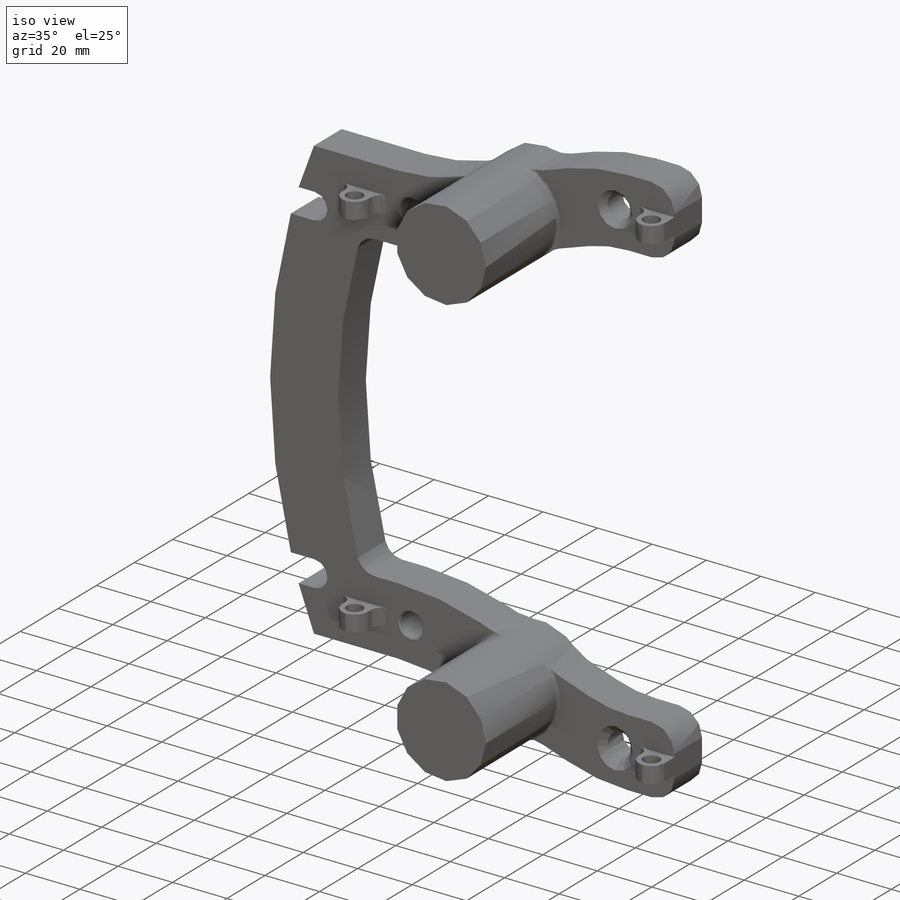
[diagram: iso view]
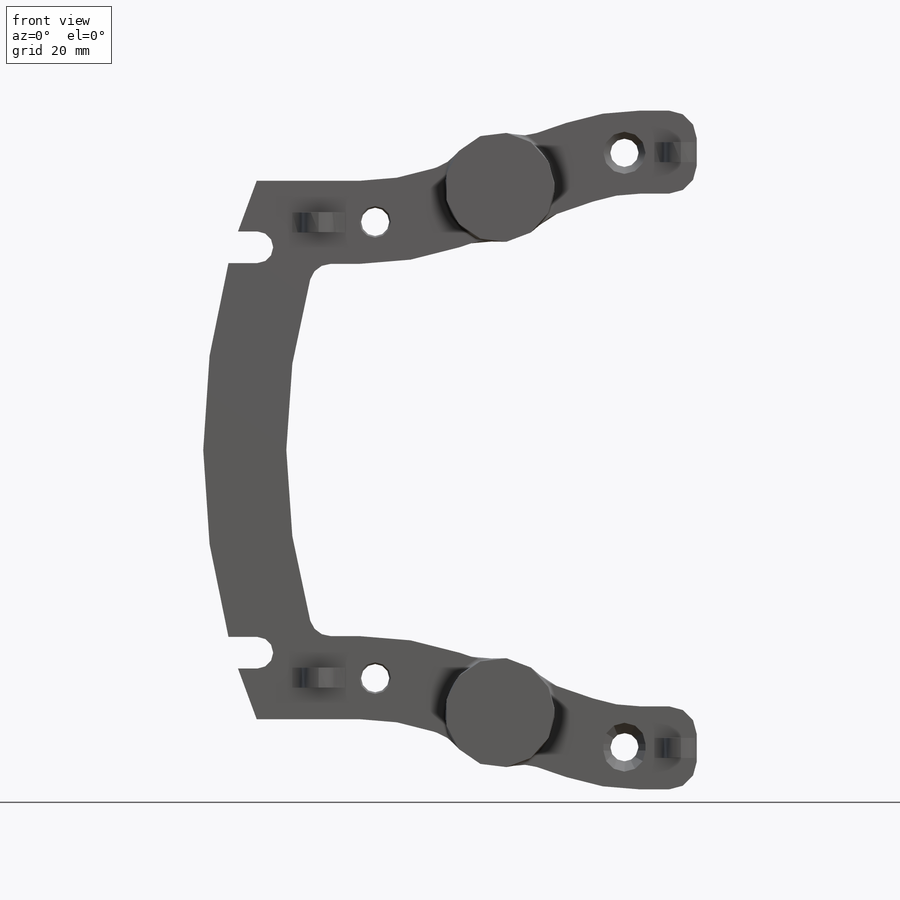
[diagram: front view]
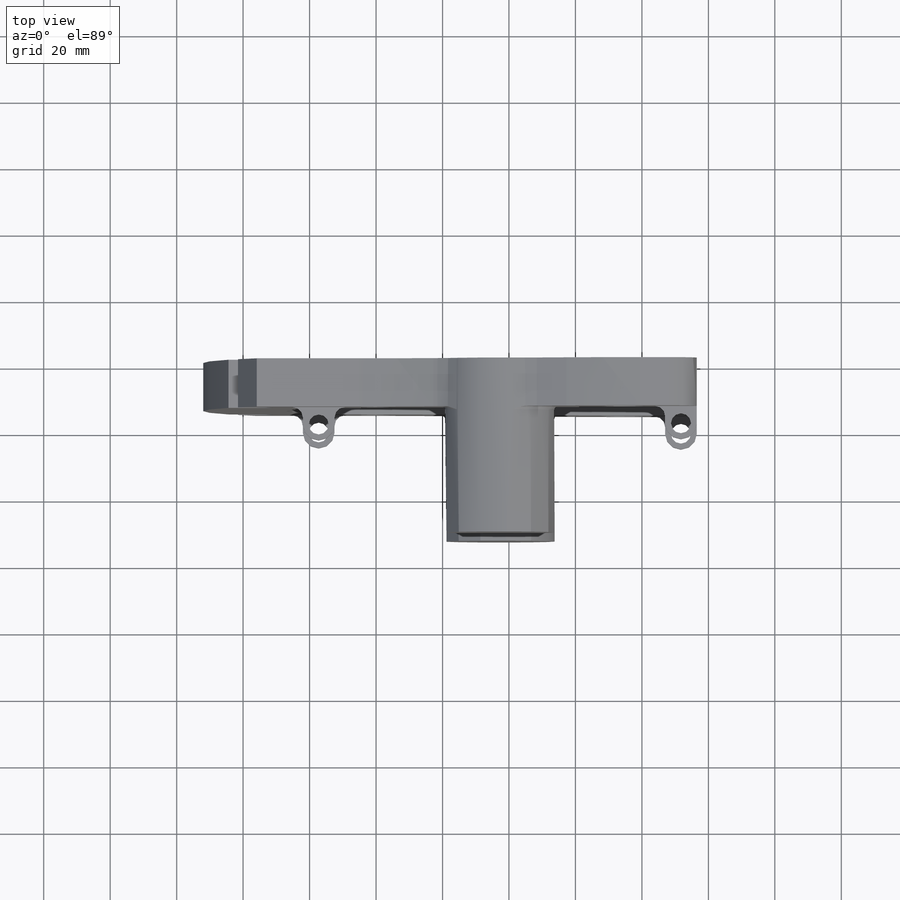
[diagram: top view]
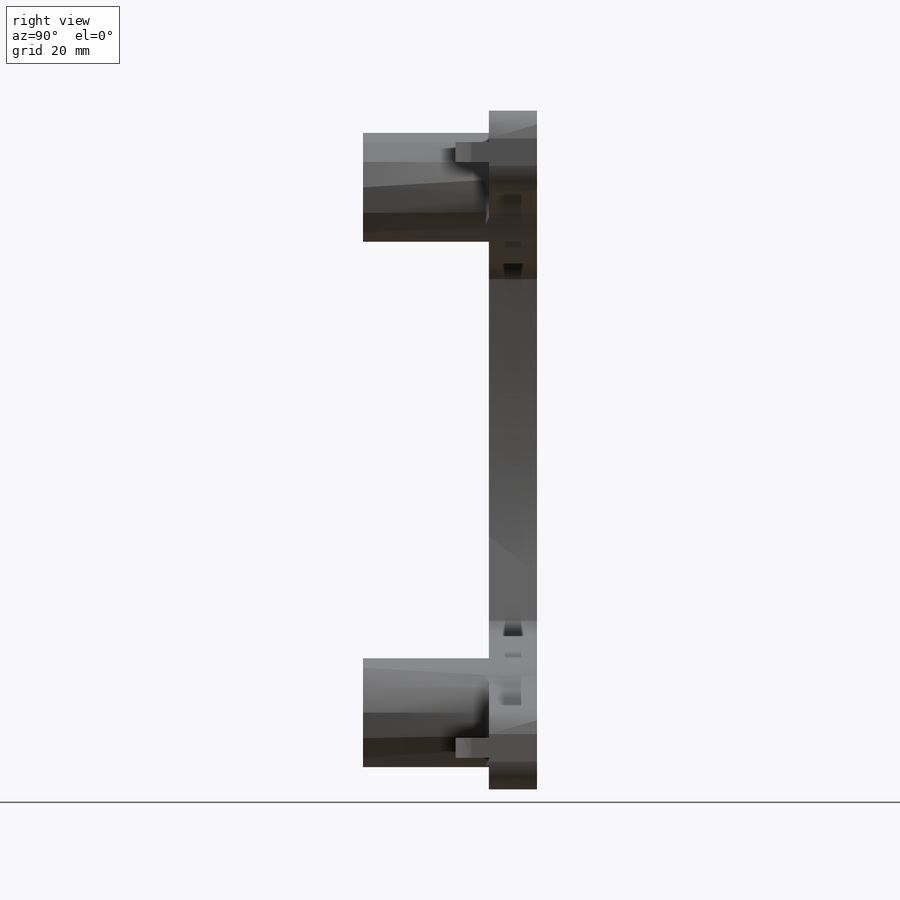
[diagram: right view]
SOLIDWORKS PART (.sldprt)
format: sldprt  version: not decoded by parser v0  size: 1,541,120 bytes
history: native  units: mm
features: sketch x21, extrude x11, fillet x9, mirror x6, cut_extrude x5, plane x4, chamfer x2, cut_revolve x2, material x1, shell x1, boolean_combine x1, hole x1 (+11 scaffold rows collapsed)
feature tree (75):
  scaffold x11  (default folders/planes/origin — collapsed)
  material  "6061 Alloy"
  sketch  "Sketch1"  dims[c1.D1=424.0mm c1.D2=374.0mm c1.D8=12.0mm c1.D9=37.0mm c1.D3=81.0mm c1.D4=25.0mm c1.D5=63.5mm c1.D6=~144.918572mm c1.D7=145.0mm c2.D6=145.0mm c2.D7=108.0mm c3.D6=~21.131403mm c3.D7=25.0mm c3.D8=17.0mm c3.D9=118.525mm c3.D10=40.0mm c3.D11=25.0mm]
  extrude  "Boss-Extrude1"  Depth=14.5mm
  plane  "Plane1"  Offset=89.631403mm
  plane  "Plane2"  Offset=68.5mm
  fillet  "Fillet5"  Radius=8.35mm
  sketch  "Sketch12"  dims[c1.D2=33.0mm c1.D1=122.7625mm c2.D2=25.0mm c2.D3=75.0mm]
  extrude  "bulge and set post hole position"  [1 undecoded]
  sketch  "Sketch24"
  extrude  "Boss-Extrude7"  Depth=37.8604mm
  mirror  "Mirror4"
  fillet  "Fillet4"  Radius=12.7mm
  sketch  "Sketch21"  dims[D1=410.0mm D3=9.525mm D2=61.0mm]
  cut_extrude  "Cut-Extrude5"  [1 undecoded]
  mirror  "Mirror7"
  shell  "Shell1"  Thickness=2mm
  sketch  "Sketch2"  dims[D3=6.0mm D1=9.525mm D2=10.0mm]
  extrude  "Boss-Extrude2"  Depth=6mm
  sketch  "Sketch3"  dims[D1=54.5mm]
  extrude  "Boss-Extrude3"  Depth=6mm
  mirror  "Mirror1"
  boolean_combine  "Combine1"
  fillet  "Fillet1"  Radius=3.175mm
  fillet  "Fillet2"  Radius=4.7625mm
  sketch  "hole and nubben"  dims[D1=205.0mm D2=61.0mm D3=41.0mm]
  hole  "CBORE for #10 Socket Head Cap Screw1"  Diameter=5.6134mm Depth=2.001mm
  sketch  "3DSketch2"
  sketch  "Sketch7"  dims[hole-wizard template sketch: 42 standard entries collapsed; hole parameters kept: c12.Thru Hole Depth=2.001mm c12.C'Bore Dia.=9.525mm c12.C'Bore Depth=4.826mm]
  sketch  "Sketch10"
  cut_extrude  "Cut-Extrude1"  Depth=3mm
  sketch  "Sketch11"
  cut_extrude  "Cut-Extrude2"  [1 undecoded]
  chamfer  "Chamfer1"  Distance=0.5mm Angle=45deg
  mirror  "Mirror2"
  fillet  "Fillet3"  Radius=6.35mm
  sketch  "Sketch13"  dims[D1=14.7mm]
  extrude  "post"  Depth=10mm
  sketch  "Sketch14"  dims[D1=8.5mm]
  cut_extrude  "Cut-Extrude3"  [1 undecoded]
  sketch  "Sketch17"  dims[D1=5.0mm D2=5.0mm]
  extrude  "Boss-Extrude6"  [1 undecoded]
  mirror  "Mirror5"
  fillet  "Fillet6"  Radius=1.5875mm
  plane  "Plane3"
  sketch  "Sketch15"  dims[c1.D1=~8.108842mm c2.D1=45.0deg c2.D2=6.35mm c2.D3=3.175mm]
  cut_revolve  "Cut-Revolve1"  Angle=360deg
  plane  "Plane4"
  sketch  "Sketch19"  dims[c1.D1=12.7mm c1.D2=12.7mm c2.D2=45.0deg]
  cut_extrude  "Cut-Extrude4"  Depth=2mm
  sketch  "Sketch20"
  cut_revolve  "Cut-Revolve2"  Angle=360deg
  mirror  "Mirror6"
  chamfer  "Chamfer2"  Distance=0.5mm Angle=45deg
  fillet  "Fillet7"  Radius=3.175mm
  sketch  "Sketch22"  dims[D1=12.7mm]
  extrude  "surface for FEE"  Depth=0.5mm
  sketch  "Sketch23"  dims[D1=17.8mm]
  extrude  "for FEE"  Depth=0.5mm
  sketch  "Sketch25"  dims[D1=6.35mm D2=14.482mm]
  extrude  "Boss-Extrude8"  [1 undecoded]
  sketch  "Sketch26"  dims[D1=4.0mm D2=4.0mm D3=4.0mm]
  extrude  "Boss-Extrude10"  [1 undecoded]
  fillet  "Fillet11"  Radius=3.175mm
  fillet  "Fillet10"  Radius=1mm
decode coverage: 40 of 59 modeling features carry decoded parameters
note: ~ marks probable driven/reference dimensions
note: 7 parameter values undecoded
summary: no parameter record found for 7 features
note: suppression state not decoded; provenance and decode notes live in map.json
